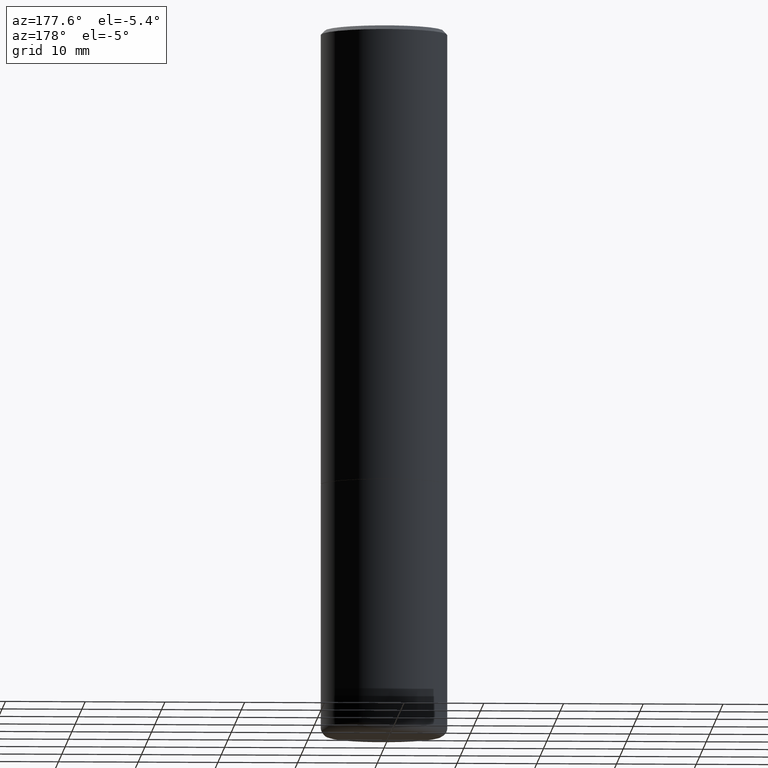
[diagram: clean part render]
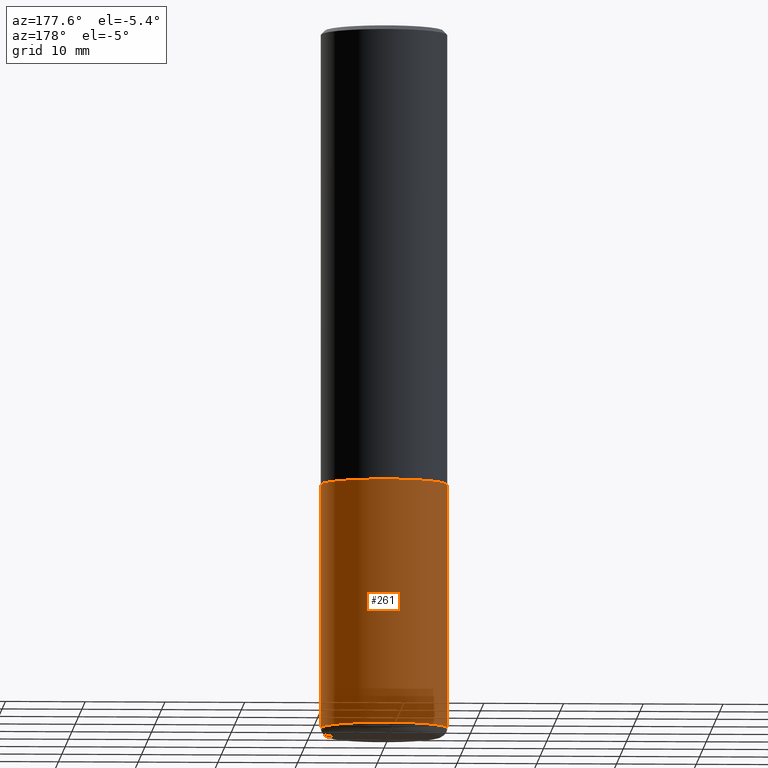
[diagram: same view with one face highlighted and labeled with its STEP entity id]
A machine part, auxiliary view. The second image highlights one B-rep face of the part: STEP entity #261.
In plain terms, the highlighted cylindrical surface (partial cylindrical patch) has radius 7.9375 mm, axis along (-0, 0, 1).
Its self-contained STEP definition (entity closure, byte-faithful):
#15 = VERTEX_POINT ( 'NONE', #436 ) ;
#31 = CIRCLE ( 'NONE', #217, 0.3125000000000000000 ) ;
#34 = DIRECTION ( 'NONE',  ( -2.445468806185136597E-29, 3.491481338843145583E-15, 1.000000000000000000 ) ) ;
#37 = CARTESIAN_POINT ( 'NONE',  ( 8.449245539719989979E-29, -1.206328334862541465E-14, -3.455061670936044216 ) ) ;
#40 = DIRECTION ( 'NONE',  ( -2.445468806185136597E-29, 3.491481338843145583E-15, 1.000000000000000000 ) ) ;
#49 = EDGE_CURVE ( 'NONE', #297, #419, #260, .T. ) ;
#59 = AXIS2_PLACEMENT_3D ( 'NONE', #405, #34, #442 ) ;
#76 = CARTESIAN_POINT ( 'NONE',  ( -0.3125000000000000000, 2.220446049250313081E-15, -1.537167215704658232E-29 ) ) ;
#79 = CARTESIAN_POINT ( 'NONE',  ( 0.3125000000000000000, -1.424545918540237458E-14, -3.455061670936044216 ) ) ;
#95 = DIRECTION ( 'NONE',  ( -2.445468806185136877E-29, 3.491481338843145188E-15, 1.000000000000000000 ) ) ;
#109 = EDGE_CURVE ( 'NONE', #297, #15, #438, .T. ) ;
#117 = DIRECTION ( 'NONE',  ( 1.000000000000000000, -6.982962677686265133E-15, 0.000000000000000000 ) ) ;
#153 = EDGE_LOOP ( 'NONE', ( #327, #230, #251, #184 ) ) ;
#184 = ORIENTED_EDGE ( 'NONE', *, *, #49, .F. ) ;
#196 = VERTEX_POINT ( 'NONE', #378 ) ;
#202 = DIRECTION ( 'NONE',  ( 1.000000000000000000, -6.982962677686269077E-15, 0.000000000000000000 ) ) ;
#217 = AXIS2_PLACEMENT_3D ( 'NONE', #392, #40, #117 ) ;
#230 = ORIENTED_EDGE ( 'NONE', *, *, #383, .T. ) ;
#251 = ORIENTED_EDGE ( 'NONE', *, *, #307, .F. ) ;
#252 = DIRECTION ( 'NONE',  ( -2.445468806185136877E-29, 3.491481338843145188E-15, 1.000000000000000000 ) ) ;
#255 = AXIS2_PLACEMENT_3D ( 'NONE', #37, #404, #202 ) ;
#260 = LINE ( 'NONE', #360, #332 ) ;
#261 = ADVANCED_FACE ( 'NONE', ( #441 ), #341, .T. ) ;
#297 = VERTEX_POINT ( 'NONE', #79 ) ;
#307 = EDGE_CURVE ( 'NONE', #419, #196, #31, .T. ) ;
#327 = ORIENTED_EDGE ( 'NONE', *, *, #109, .T. ) ;
#332 = VECTOR ( 'NONE', #95, 39.37007874015748143 ) ;
#341 = CYLINDRICAL_SURFACE ( 'NONE', #59, 0.3125000000000000000 ) ;
#360 = CARTESIAN_POINT ( 'NONE',  ( 0.3125000000000000000, -2.182175836776958347E-15, 1.523805242436230075E-29 ) ) ;
#378 = CARTESIAN_POINT ( 'NONE',  ( -0.3125000000000000000, -7.739112131260931893E-15, -2.249999999999999556 ) ) ;
#383 = EDGE_CURVE ( 'NONE', #15, #196, #418, .T. ) ;
#392 = CARTESIAN_POINT ( 'NONE',  ( 5.502304813916556222E-29, -7.855833012397075293E-15, -2.249999999999999556 ) ) ;
#396 = VECTOR ( 'NONE', #252, 39.37007874015748143 ) ;
#404 = DIRECTION ( 'NONE',  ( -2.445468806185136597E-29, 3.491481338843145583E-15, 1.000000000000000000 ) ) ;
#405 = CARTESIAN_POINT ( 'NONE',  ( 0.000000000000000000, 0.000000000000000000, 0.000000000000000000 ) ) ;
#412 = CARTESIAN_POINT ( 'NONE',  ( 0.3125000000000000000, -1.003800884917403364E-14, -2.249999999999999556 ) ) ;
#418 = LINE ( 'NONE', #76, #396 ) ;
#419 = VERTEX_POINT ( 'NONE', #412 ) ;
#436 = CARTESIAN_POINT ( 'NONE',  ( -0.3125000000000000000, -7.739112131260931893E-15, -3.455061670936044216 ) ) ;
#438 = CIRCLE ( 'NONE', #255, 0.3125000000000000000 ) ;
#441 = FACE_OUTER_BOUND ( 'NONE', #153, .T. ) ;
#442 = DIRECTION ( 'NONE',  ( 1.000000000000000000, -6.982962677686266711E-15, 4.876176775795936353E-29 ) ) ;